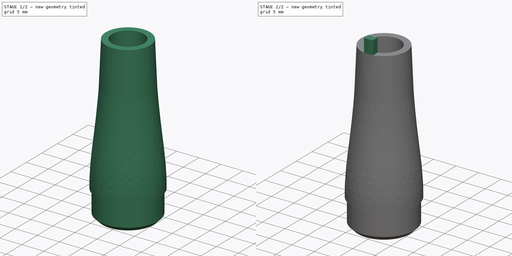
[diagram: build sequence overview — one tinted view per stage of 2, left to right]
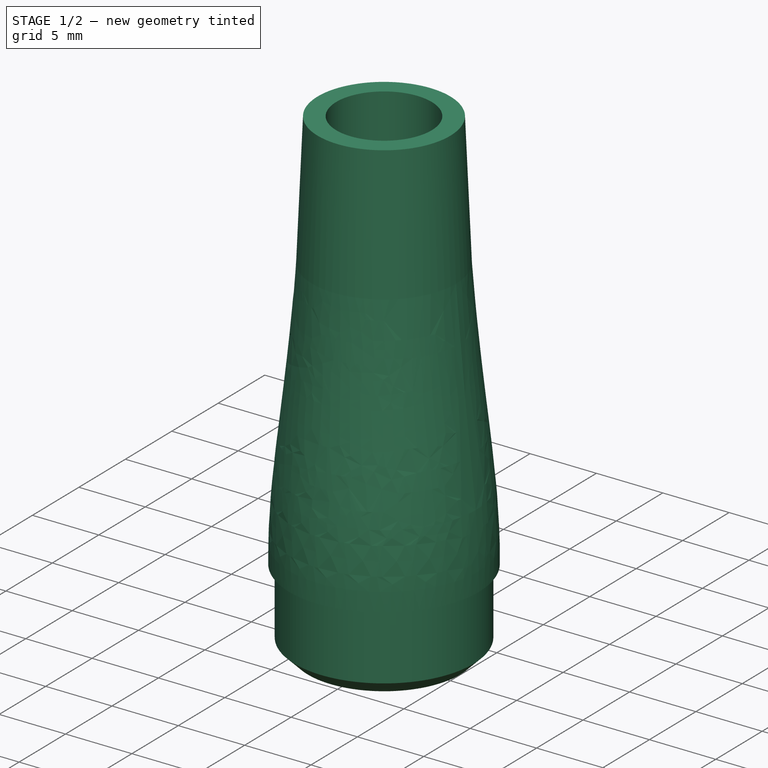
[diagram: stage 1 of 2 — iso view after this stage's code; geometry added in this stage tinted green]
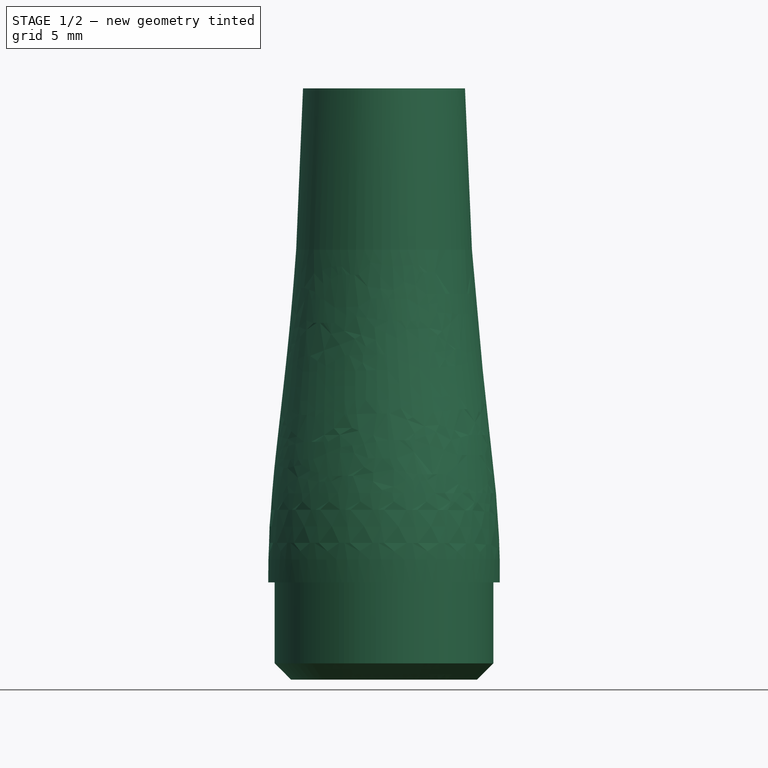
[diagram: stage 1 of 2 — front view after this stage's code; geometry added in this stage tinted green]
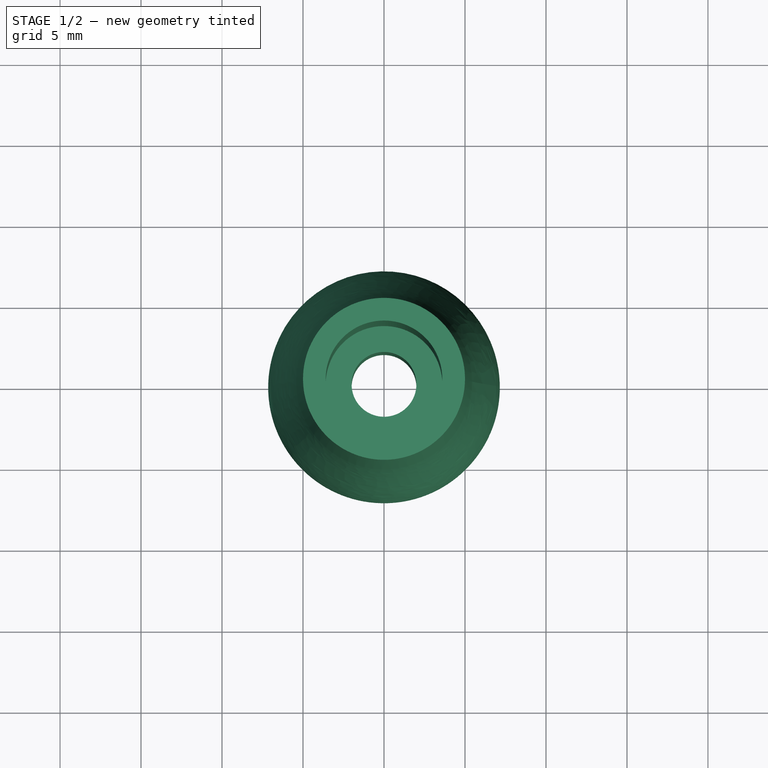
[diagram: stage 1 of 2 — top view after this stage's code; geometry added in this stage tinted green]
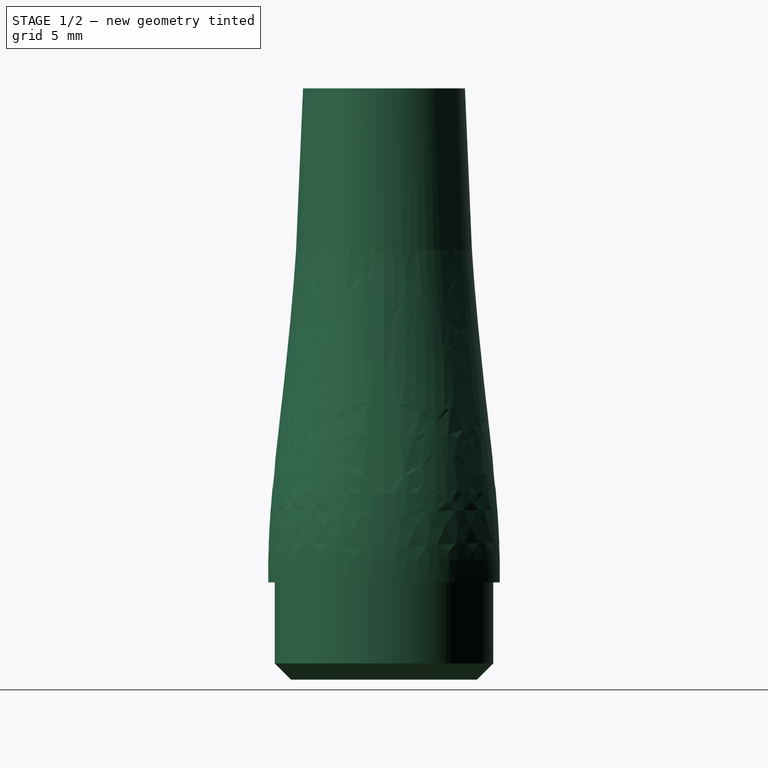
[diagram: stage 1 of 2 — right view after this stage's code; geometry added in this stage tinted green]
FCSTD DOCUMENT  (FreeCAD 0.19R23756 (Git))
Label: Front cap
License: All rights reserved
LicenseURL: http://en.wikipedia.org/wiki/All_rights_reserved
objects: Sketcher::SketchObject×2, PartDesign::Revolution×1, PartDesign::Chamfer×1, PartDesign::Pad×1, PartDesign::Body×1
note: 9 computed .brp shape members not serialized (recipe doc carries the construction recipe); baked Part::Feature solids carry a one-line shape summary decoded from their .brp

FEATURE [Sketcher::SketchObject] Sketch
  FullyConstrained = false
  MapMode = 5
  Placement = pos=(0,0,0) rot=(1,0,0;1.5708rad)
  Support = -> [XZ_Plane]
  sketch-geometry (16):
    g0: LineSegment StartX=4.85 StartY=0 StartZ=0 EndX=4.85 EndY=6 EndZ=0
    g1: LineSegment StartX=4.85 StartY=6 StartZ=0 EndX=2 EndY=6 EndZ=0
    g2: LineSegment StartX=2 StartY=6 StartZ=0 EndX=2 EndY=17 EndZ=0
    g3: LineSegment StartX=2 StartY=17 StartZ=0 EndX=3.6 EndY=17 EndZ=0
    g4: LineSegment StartX=3.6 StartY=17 StartZ=0 EndX=3.6 EndY=36.5 EndZ=0
    g5: LineSegment StartX=3.6 StartY=36.5 StartZ=0 EndX=5 EndY=36.5 EndZ=0
    g6: LineSegment StartX=4.85 StartY=0 StartZ=0 EndX=6.75 EndY=0 EndZ=0
    g7: LineSegment StartX=6.75 StartY=0 StartZ=0 EndX=6.75 EndY=6 EndZ=0
    g8: LineSegment StartX=6.75 StartY=6 StartZ=0 EndX=7.15 EndY=6 EndZ=0
    g9-g12: Circle x4 (B-spline internal-alignment scaffolding for g13; pole/knot coordinates omitted)
    g13: BSplineCurve PolesCount=4 KnotsCount=2 Degree=3 IsPeriodic=0
    g14: GeomPoint X=5 Y=36.5 Z=0
    g15: GeomPoint X=7.15 Y=6 Z=0
  constraints (37):
    c: PointOnObject(g0,g-1)
    c: Vertical(g0)
    c: DistanceX(g0) = 4.85
    c: Distance(g0) = 6
    c: Coincident(g1,g0)
    c: Horizontal(g1)
    c: DistanceX(g1) = 2
    c: Coincident(g2,g1)
    c: Vertical(g2)
    c: DistanceY(g2,g2) = 11
    c: Coincident(g3,g2)
    c: Horizontal(g3)
    c: DistanceX(g3) = 3.6
    c: Coincident(g4,g3)
    c: Vertical(g4)
    c: DistanceY(g4,g4) = 19.5
    c: Coincident(g5,g4)
    c: Horizontal(g5)
    c: DistanceX(g5) = 5
    c: Coincident(g6,g0)
    c: PointOnObject(g6,g-1)
    c: DistanceX(g6) = 6.75
    c: Coincident(g7,g6)
    c: Vertical(g7)
    c: DistanceY(g7,g7) = 6
    c: Coincident(g8,g7)
    c: Horizontal(g8)
    c: DistanceX(g8) = 7.15
    c: Coincident(g13,g5)
    c: Weight(g9) = 1
    c: Equal(g9,g10)
    c: Equal(g9,g11)
    c: Equal(g9,g12)
    c: Coincident(g13,g8)
    c: InternalAlignment(g9-g12 -> g13) x4
    c: InternalAlignment(g14,g13)
    c: InternalAlignment(g15,g13)
FEATURE [PartDesign::Revolution] Revolution
  Angle = 360
  Axis = (0,-2e-16,1)
  Base = (0,0,0)
  Placement = pos=(0,0,0) rot=(1,0,0;1.5708rad)
  Profile = -> Sketch
  ReferenceAxis = -> Sketch [V_Axis]
  Reversed = true
FEATURE [PartDesign::Chamfer] Chamfer
  Angle = 45
  Base = -> Revolution [Edge14]
  BaseFeature = -> Revolution
  ChamferType = 0
  FlipDirection = false
  Placement = pos=(0,0,0) rot=(1,0,0;1.5708rad)
  Size = 1
  Size2 = 1
  SupportTransform = false
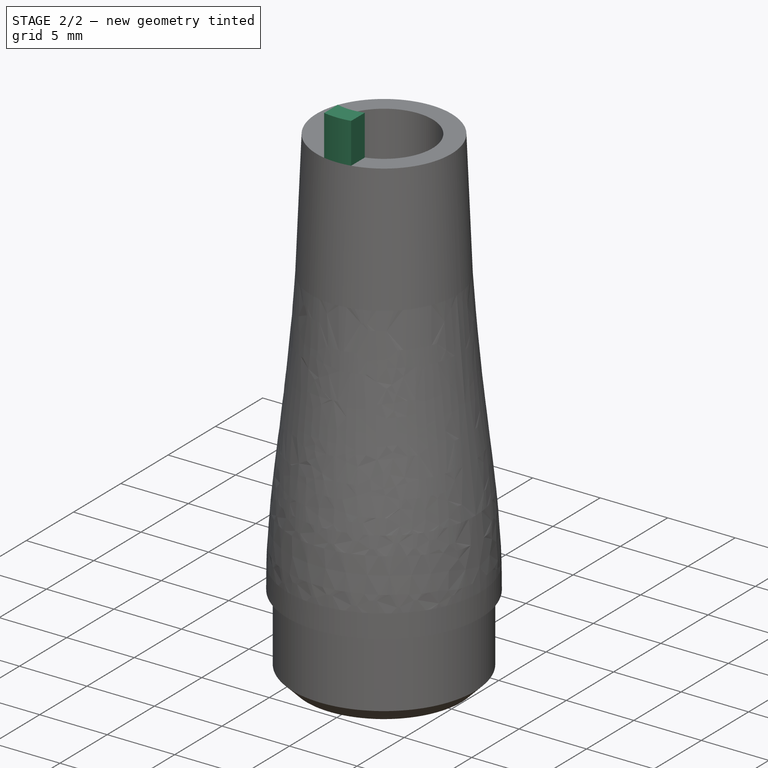
[diagram: stage 2 of 2 — iso view after this stage's code; geometry added in this stage tinted green]
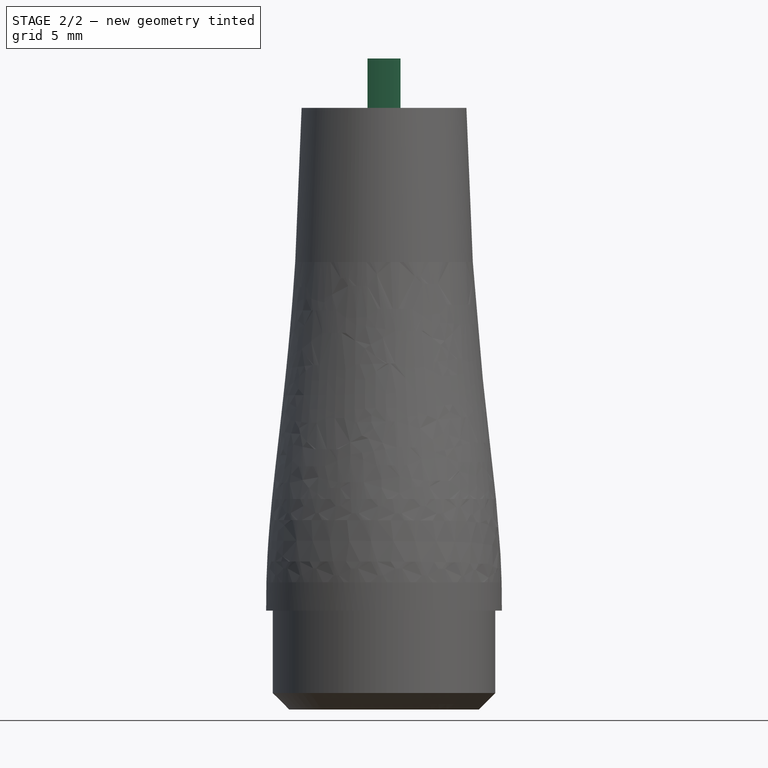
[diagram: stage 2 of 2 — front view after this stage's code; geometry added in this stage tinted green]
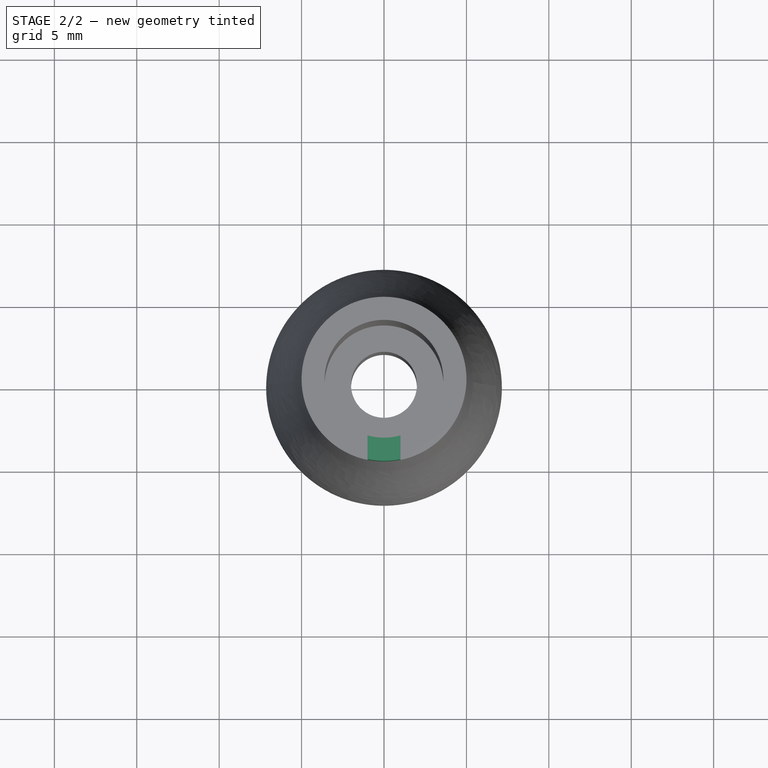
[diagram: stage 2 of 2 — top view after this stage's code; geometry added in this stage tinted green]
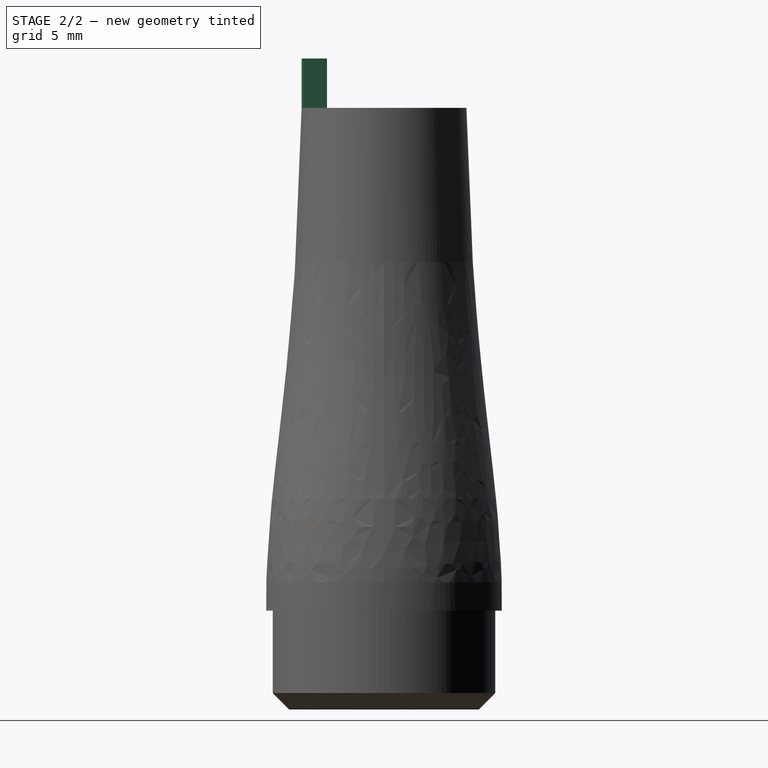
[diagram: stage 2 of 2 — right view after this stage's code; geometry added in this stage tinted green]
FEATURE [Sketcher::SketchObject] Sketch001
  FullyConstrained = false
  MapMode = 5
  Placement = pos=(0,2.4e-14,36.5) rot=(0,0,1;3.14159rad)
  sketch-geometry (4):
    g0: ArcOfCircle CenterX=0 CenterY=0 CenterZ=0 NormalX=0 NormalY=0 NormalZ=1 AngleXU=0 Radius=3.6 StartAngle=1.28932 EndAngle=1.85228
    g1: ArcOfCircle CenterX=0 CenterY=0 CenterZ=0 NormalX=0 NormalY=0 NormalZ=1 AngleXU=0 Radius=5 StartAngle=1.36944 EndAngle=1.77215
    g2: LineSegment StartX=1 StartY=4.89898 StartZ=0 EndX=1 EndY=3.45832 EndZ=0
    g3: LineSegment StartX=-1 StartY=3.45832 StartZ=0 EndX=-1 EndY=4.89898 EndZ=0
  constraints (10):
    c: Coincident(g0,g-1)
    c: Coincident(g1,g0)
    c: Diameter(g0) = 7.2
    c: Diameter(g1) = 10
    c: Vertical(g2)
    c: Vertical(g3)
    c: Coincident(g2,g1)
    c: Coincident(g3,g1)
    c: Coincident(g3,g0)
    c: Coincident(g2,g0)
FEATURE [PartDesign::Pad] Pad
  BaseFeature = -> Chamfer
  Direction = (1,1,1)
  Length = 3
  Length2 = 100
  Placement = pos=(0,0,0) rot=(1,0,0;1.5708rad)
  Profile = -> Sketch001
  Type = 0
FEATURE [PartDesign::Body] Body
  Group = -> [Sketch,Revolution,Chamfer,Sketch001,Pad]
  Origin = -> Origin
  Tip = -> Pad
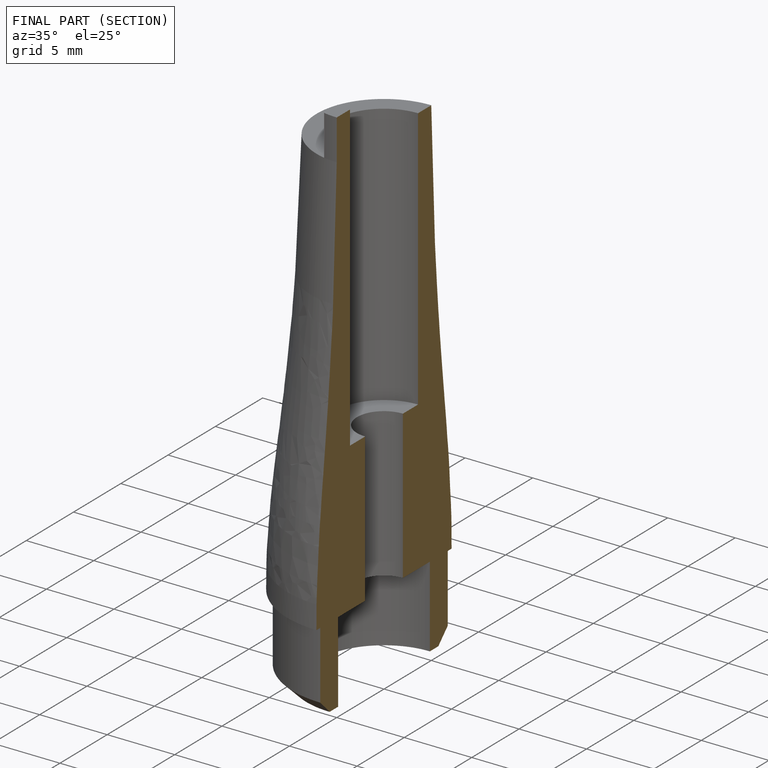
[diagram: finished part — half-section view (interior)]
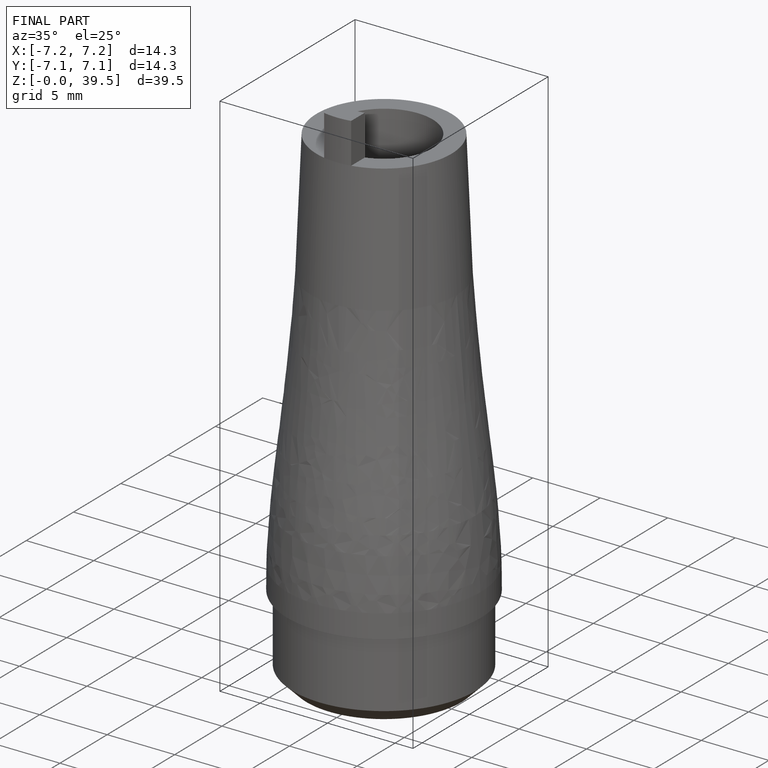
[diagram: finished part — iso view with bounding-box wireframe]
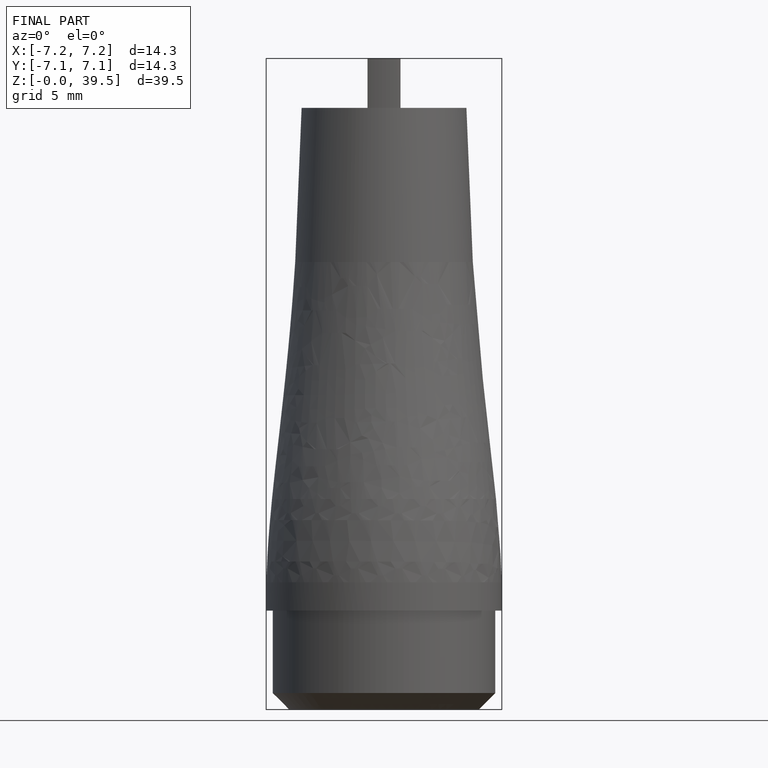
[diagram: finished part — front view with bounding-box wireframe]
